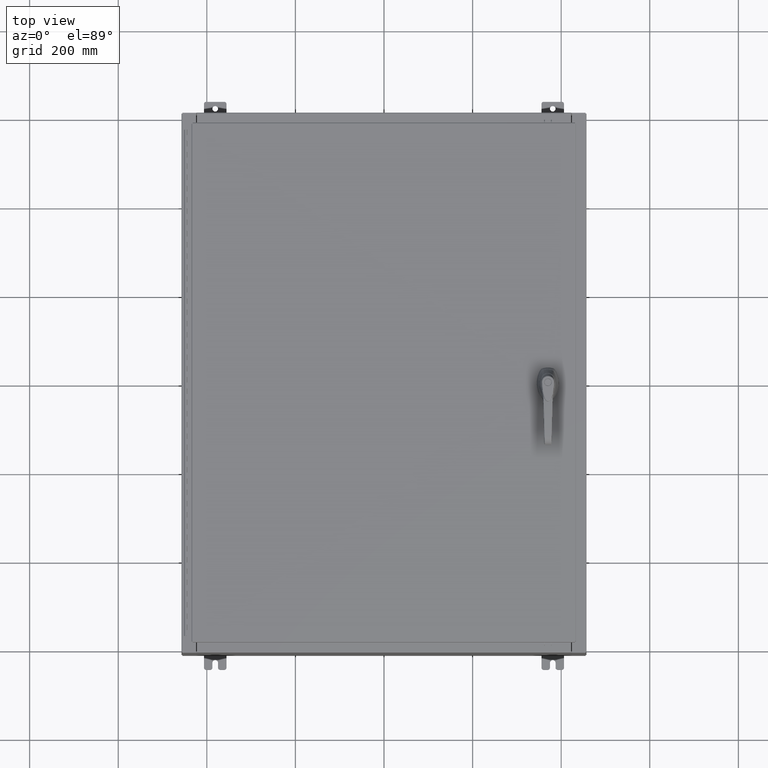
[diagram: clean part render]
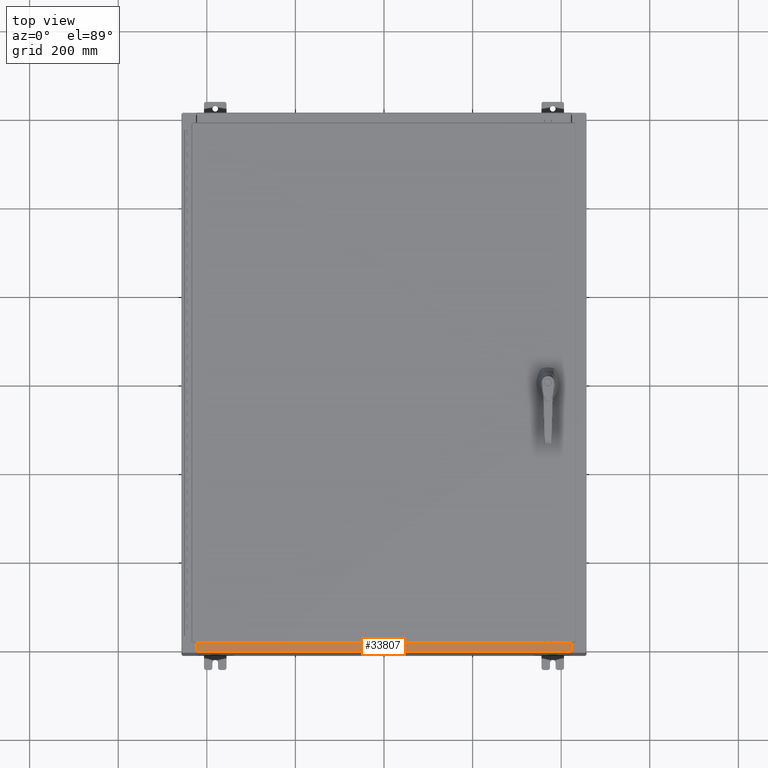
[diagram: same view with one face highlighted and labeled with its STEP entity id]
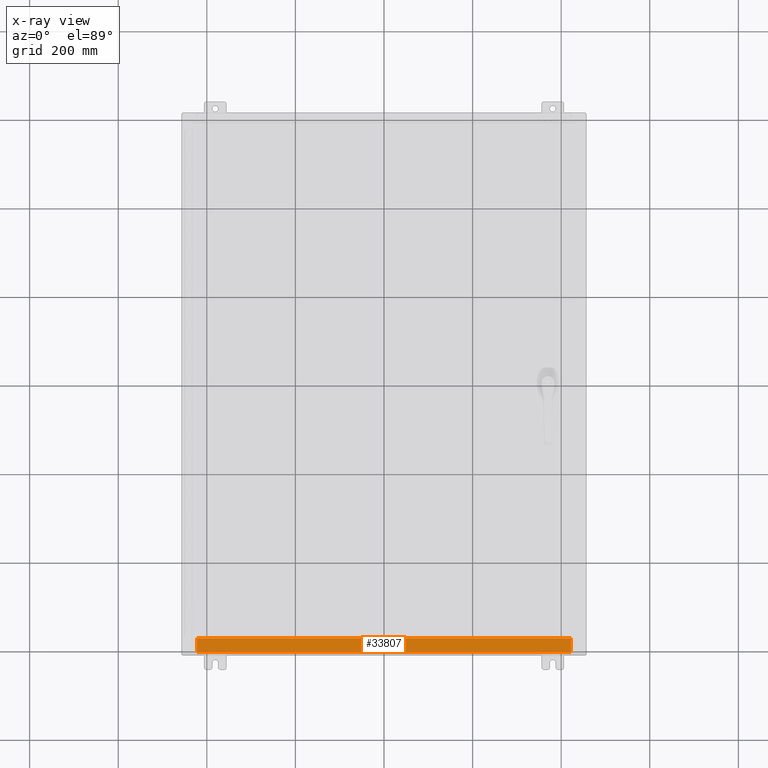
[diagram: x-ray of the same camera — body ghosted, the highlighted face saturated]
A machine part, top view. The second image highlights one B-rep face of the part: STEP entity #33807.
The next image is the same camera in x-ray: the body ghosted, the highlighted face saturated — about 0% of this face is hidden behind the body in this view.
In plain terms, the highlighted planar face has unit normal (-0, -0, 1).
Its self-contained STEP definition (entity closure, byte-faithful):
#151 = VECTOR ( 'NONE', #56705, 39.37007874015748100 ) ;
#5090 = LINE ( 'NONE', #40440, #110933 ) ;
#10166 = ORIENTED_EDGE ( 'NONE', *, *, #74349, .F. ) ;
#18705 = CARTESIAN_POINT ( 'NONE',  ( 16.63720000000000400, -1.287300000000000300, 8.000000000000003600 ) ) ;
#21152 = AXIS2_PLACEMENT_3D ( 'NONE', #54404, #116726, #55284 ) ;
#32264 = VERTEX_POINT ( 'NONE', #101001 ) ;
#33807 = ADVANCED_FACE ( 'NONE', ( #115364 ), #45015, .T. ) ;
#37248 = ORIENTED_EDGE ( 'NONE', *, *, #39913, .T. ) ;
#39913 = EDGE_CURVE ( 'NONE', #60240, #32264, #101755, .T. ) ;
#40440 = CARTESIAN_POINT ( 'NONE',  ( 16.63720000000000000, -1.300299999999999800, 8.000000000000003600 ) ) ;
#40794 = VECTOR ( 'NONE', #65826, 39.37007874015748100 ) ;
#42367 = LINE ( 'NONE', #18705, #93639 ) ;
#43025 = VERTEX_POINT ( 'NONE', #109352 ) ;
#44794 = CARTESIAN_POINT ( 'NONE',  ( 5.308514113925181600E-016, -0.08770000000000136000, 8.000000000000001800 ) ) ;
#45015 = PLANE ( 'NONE',  #21152 ) ;
#51791 = EDGE_LOOP ( 'NONE', ( #60469, #105094, #10166, #37248 ) ) ;
#54404 = CARTESIAN_POINT ( 'NONE',  ( 5.250912337413644300E-016, 2.852545452309695200E-014, 8.000000000000001800 ) ) ;
#55284 = DIRECTION ( 'NONE',  ( 0.0000000000000000000, -1.000000000000000000, 3.566381192773190000E-015 ) ) ;
#56705 = DIRECTION ( 'NONE',  ( -0.0000000000000000000, 1.000000000000000000, -3.566381192773190000E-015 ) ) ;
#60240 = VERTEX_POINT ( 'NONE', #117456 ) ;
#60469 = ORIENTED_EDGE ( 'NONE', *, *, #117688, .F. ) ;
#61055 = DIRECTION ( 'NONE',  ( -0.0000000000000000000, -1.000000000000000000, 3.566381192773190000E-015 ) ) ;
#65826 = DIRECTION ( 'NONE',  ( -1.000000000000000000, -6.568047492761434800E-017, 6.568047492761457000E-017 ) ) ;
#74349 = EDGE_CURVE ( 'NONE', #60240, #43025, #5090, .T. ) ;
#81901 = LINE ( 'NONE', #118148, #151 ) ;
#90972 = EDGE_CURVE ( 'NONE', #43025, #121635, #42367, .T. ) ;
#93639 = VECTOR ( 'NONE', #100744, 39.37007874015748100 ) ;
#100744 = DIRECTION ( 'NONE',  ( -1.000000000000000000, 0.0000000000000000000, 0.0000000000000000000 ) ) ;
#101001 = CARTESIAN_POINT ( 'NONE',  ( -16.63720000000000000, -0.08770000000000136000, 8.000000000000001800 ) ) ;
#101755 = LINE ( 'NONE', #44794, #40794 ) ;
#105094 = ORIENTED_EDGE ( 'NONE', *, *, #90972, .F. ) ;
#109352 = CARTESIAN_POINT ( 'NONE',  ( 16.63720000000000000, -1.287300000000000300, 8.000000000000003600 ) ) ;
#110933 = VECTOR ( 'NONE', #61055, 39.37007874015748100 ) ;
#115364 = FACE_OUTER_BOUND ( 'NONE', #51791, .T. ) ;
#116726 = DIRECTION ( 'NONE',  ( 6.568047492761433500E-017, 3.566381192773190000E-015, 1.000000000000000000 ) ) ;
#117456 = CARTESIAN_POINT ( 'NONE',  ( 16.63720000000000400, -0.08770000000000102700, 8.000000000000000000 ) ) ;
#117688 = EDGE_CURVE ( 'NONE', #121635, #32264, #81901, .T. ) ;
#117914 = CARTESIAN_POINT ( 'NONE',  ( -16.63720000000000000, -1.287299999999999400, 8.000000000000007100 ) ) ;
#118148 = CARTESIAN_POINT ( 'NONE',  ( -16.63720000000000000, -0.07469999999999973900, 8.000000000000001800 ) ) ;
#121635 = VERTEX_POINT ( 'NONE', #117914 ) ;